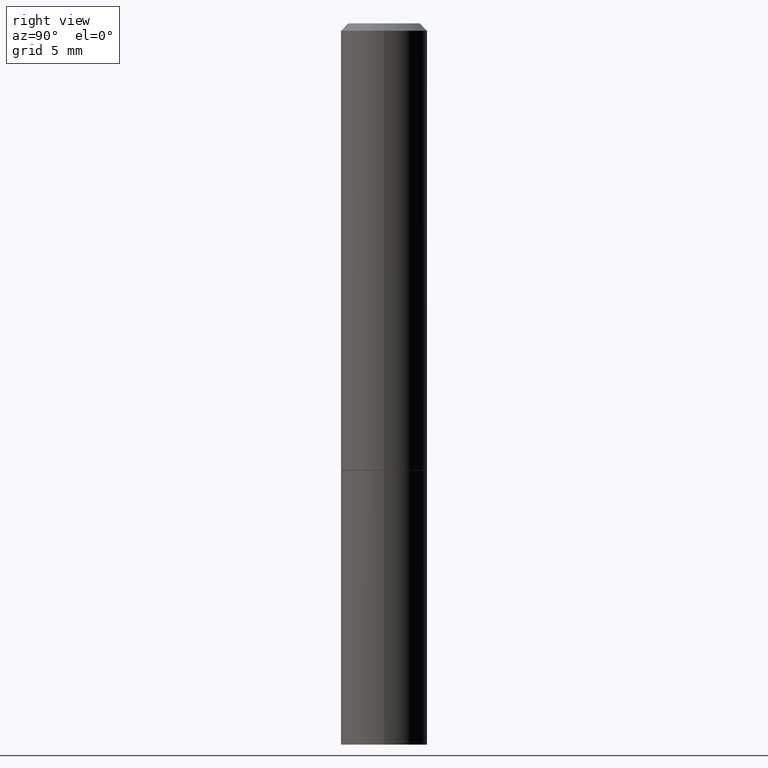
[diagram: clean part render]
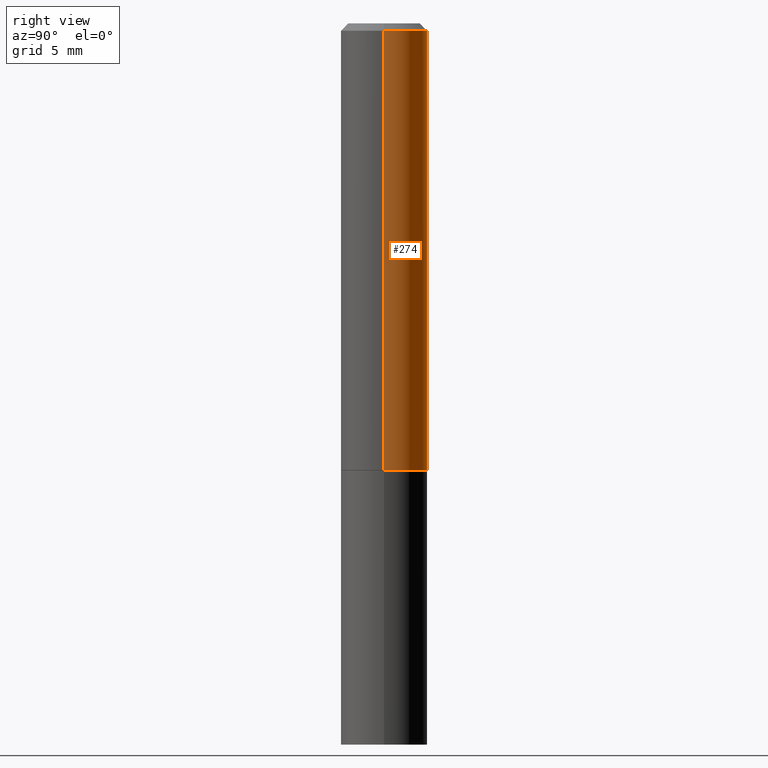
[diagram: same view with one face highlighted and labeled with its STEP entity id]
A machine part, right view. The second image highlights one B-rep face of the part: STEP entity #274.
In plain terms, the highlighted cylindrical surface (partial cylindrical patch) has radius 2.9997 mm, axis along (-0, 0, 1).
Its self-contained STEP definition (entity closure, byte-faithful):
#33 = VERTEX_POINT ( 'NONE', #44 ) ;
#44 = CARTESIAN_POINT ( 'NONE',  ( 0.1180999999999998301, -8.800544403136797528E-16, -0.02000000000000003511 ) ) ;
#51 = CARTESIAN_POINT ( 'NONE',  ( 0.000000000000000000, 0.000000000000000000, 0.000000000000000000 ) ) ;
#56 = DIRECTION ( 'NONE',  ( 1.000000000000000000, -6.982962677686266711E-15, 0.000000000000000000 ) ) ;
#62 = EDGE_CURVE ( 'NONE', #90, #175, #213, .T. ) ;
#64 = EDGE_LOOP ( 'NONE', ( #205, #285, #342, #123 ) ) ;
#79 = DIRECTION ( 'NONE',  ( 1.000000000000000000, -6.982962677686266711E-15, 4.876176775795935793E-29 ) ) ;
#86 = DIRECTION ( 'NONE',  ( -2.445468806185136597E-29, 3.491481338843145583E-15, 1.000000000000000000 ) ) ;
#90 = VERTEX_POINT ( 'NONE', #346 ) ;
#108 = CARTESIAN_POINT ( 'NONE',  ( -0.1180999999999999134, 8.391509709326777040E-16, -5.809262341591039580E-30 ) ) ;
#115 = DIRECTION ( 'NONE',  ( 1.000000000000000000, -6.982962677686265133E-15, 0.000000000000000000 ) ) ;
#121 = VECTOR ( 'NONE', #186, 39.37007874015748143 ) ;
#123 = ORIENTED_EDGE ( 'NONE', *, *, #130, .F. ) ;
#130 = EDGE_CURVE ( 'NONE', #313, #33, #245, .T. ) ;
#143 = CIRCLE ( 'NONE', #308, 0.1180999999999999966 ) ;
#175 = VERTEX_POINT ( 'NONE', #291 ) ;
#186 = DIRECTION ( 'NONE',  ( -2.445468806185136877E-29, 3.491481338843145188E-15, 1.000000000000000000 ) ) ;
#197 = FACE_OUTER_BOUND ( 'NONE', #64, .T. ) ;
#205 = ORIENTED_EDGE ( 'NONE', *, *, #239, .T. ) ;
#213 = LINE ( 'NONE', #108, #121 ) ;
#216 = DIRECTION ( 'NONE',  ( -2.445468806185136597E-29, 3.491481338843145583E-15, 1.000000000000000000 ) ) ;
#223 = CARTESIAN_POINT ( 'NONE',  ( 2.982249209142773869E-29, -4.257861492719216809E-15, -1.219500000000000028 ) ) ;
#237 = CARTESIAN_POINT ( 'NONE',  ( 0.1180999999999999134, -8.246878922347474737E-16, 5.758764772214996237E-30 ) ) ;
#239 = EDGE_CURVE ( 'NONE', #313, #90, #143, .T. ) ;
#245 = LINE ( 'NONE', #237, #303 ) ;
#266 = CIRCLE ( 'NONE', #344, 0.1180999999999998301 ) ;
#274 = ADVANCED_FACE ( 'NONE', ( #197 ), #278, .T. ) ;
#276 = CARTESIAN_POINT ( 'NONE',  ( 0.1180999999999999966, -5.082549384953964283E-15, -1.219500000000000028 ) ) ;
#278 = CYLINDRICAL_SURFACE ( 'NONE', #296, 0.1180999999999999134 ) ;
#282 = EDGE_CURVE ( 'NONE', #33, #175, #266, .T. ) ;
#285 = ORIENTED_EDGE ( 'NONE', *, *, #62, .T. ) ;
#291 = CARTESIAN_POINT ( 'NONE',  ( -0.1180999999999998301, 7.548582654578837811E-16, -0.02000000000000003511 ) ) ;
#296 = AXIS2_PLACEMENT_3D ( 'NONE', #51, #216, #79 ) ;
#300 = DIRECTION ( 'NONE',  ( -2.445468806185136877E-29, 3.491481338843145188E-15, 1.000000000000000000 ) ) ;
#303 = VECTOR ( 'NONE', #300, 39.37007874015748143 ) ;
#305 = CARTESIAN_POINT ( 'NONE',  ( 4.890937612370281041E-31, -6.982962677686302702E-17, -0.02000000000000003511 ) ) ;
#307 = DIRECTION ( 'NONE',  ( -2.445468806185136597E-29, 3.491481338843145583E-15, 1.000000000000000000 ) ) ;
#308 = AXIS2_PLACEMENT_3D ( 'NONE', #223, #86, #115 ) ;
#313 = VERTEX_POINT ( 'NONE', #276 ) ;
#342 = ORIENTED_EDGE ( 'NONE', *, *, #282, .F. ) ;
#344 = AXIS2_PLACEMENT_3D ( 'NONE', #305, #307, #56 ) ;
#346 = CARTESIAN_POINT ( 'NONE',  ( -0.1180999999999999966, -1.324694588815359885E-15, -1.219500000000000028 ) ) ;